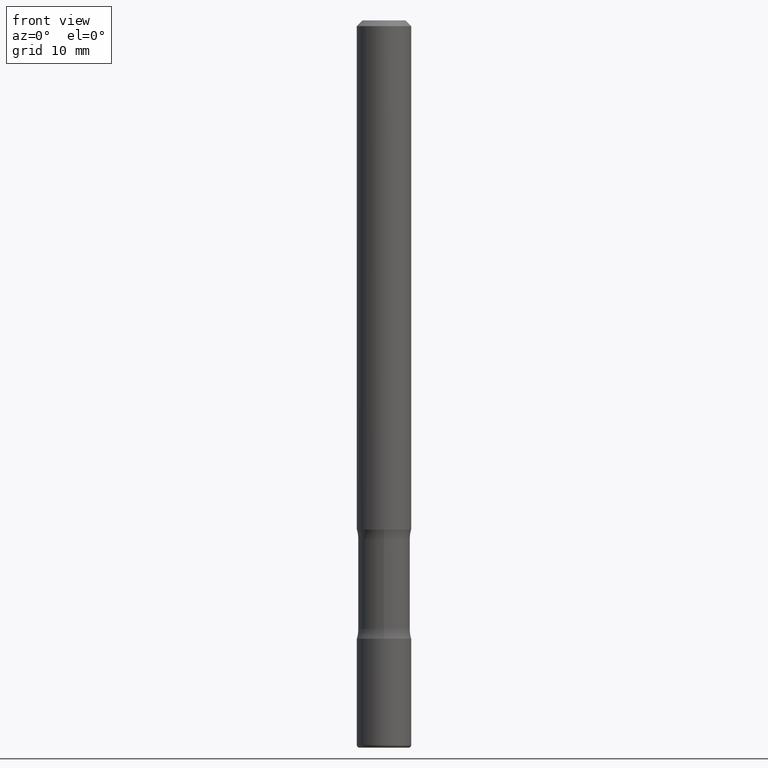
[diagram: clean part render]
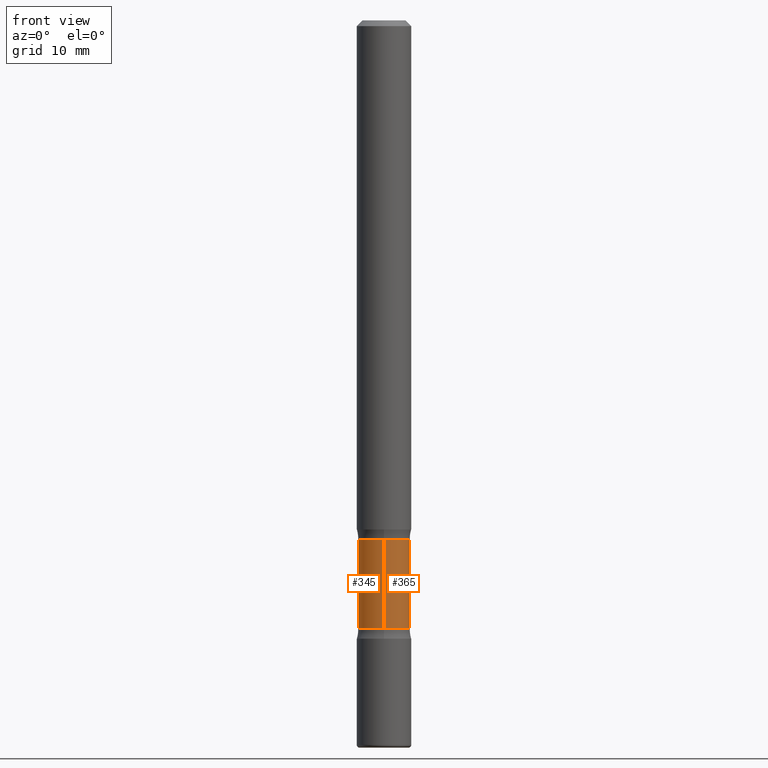
[diagram: same view with one multi-face feature highlighted, each face labeled with its STEP entity id]
A machine part, front view. The highlighted faces form ONE feature: a constant-radius fillet chain: 2 tangent blend faces with common blend radius 2.2622 mm. The faces share edges in the B-rep.
Their STEP definitions:
[1] entity #345 (Cylinder):
#5 = VERTEX_POINT ( 'NONE', #537 ) ;
#10 = DIRECTION ( 'NONE',  ( 6.982962677686265133E-15, 1.000000000000000000, -6.134676196298701332E-15 ) ) ;
#31 = CARTESIAN_POINT ( 'NONE',  ( -6.110131029264649859E-16, -0.08906250000000860700, -2.499999999999999556 ) ) ;
#39 = VERTEX_POINT ( 'NONE', #360 ) ;
#43 = DIRECTION ( 'NONE',  ( 2.553476385947133355E-29, -3.336808337214295667E-15, -1.000000000000000000 ) ) ;
#61 = VERTEX_POINT ( 'NONE', #296 ) ;
#62 = EDGE_CURVE ( 'NONE', #5, #39, #453, .T. ) ;
#94 = CIRCLE ( 'NONE', #358, 0.08906249999999994726 ) ;
#109 = EDGE_LOOP ( 'NONE', ( #509, #522, #311, #391 ) ) ;
#116 = LINE ( 'NONE', #407, #117 ) ;
#117 = VECTOR ( 'NONE', #329, 39.37007874015748143 ) ;
#126 = FACE_OUTER_BOUND ( 'NONE', #109, .T. ) ;
#136 = DIRECTION ( 'NONE',  ( 2.553476385947133355E-29, -3.336808337214295667E-15, -1.000000000000000000 ) ) ;
#191 = EDGE_CURVE ( 'NONE', #39, #386, #237, .T. ) ;
#206 = DIRECTION ( 'NONE',  ( 2.553476385947133355E-29, -3.336808337214295667E-15, -1.000000000000000000 ) ) ;
#211 = AXIS2_PLACEMENT_3D ( 'NONE', #523, #136, #10 ) ;
#217 = CARTESIAN_POINT ( 'NONE',  ( 4.325656488947447574E-29, -6.281246590105103764E-15, -1.783910210022204623 ) ) ;
#237 = CIRCLE ( 'NONE', #331, 0.08906249999999993339 ) ;
#254 = CYLINDRICAL_SURFACE ( 'NONE', #211, 0.08906249999999993339 ) ;
#260 = DIRECTION ( 'NONE',  ( 2.553476385947133355E-29, -3.336808337214295667E-15, -1.000000000000000000 ) ) ;
#283 = CARTESIAN_POINT ( 'NONE',  ( 6.219201134814836160E-16, 0.08906249999999261979, -2.091089789977795821 ) ) ;
#296 = CARTESIAN_POINT ( 'NONE',  ( 6.219201134814759246E-16, 0.08906249999999366063, -1.783910210022204845 ) ) ;
#309 = CARTESIAN_POINT ( 'NONE',  ( 5.110032292609207884E-29, -7.306245973522905960E-15, -2.091089789977795821 ) ) ;
#311 = ORIENTED_EDGE ( 'NONE', *, *, #539, .T. ) ;
#329 = DIRECTION ( 'NONE',  ( 2.553476385947133355E-29, -3.336808337214295667E-15, -1.000000000000000000 ) ) ;
#331 = AXIS2_PLACEMENT_3D ( 'NONE', #309, #43, #469 ) ;
#345 = ADVANCED_FACE ( 'NONE', ( #126 ), #254, .T. ) ;
#358 = AXIS2_PLACEMENT_3D ( 'NONE', #217, #260, #385 ) ;
#360 = CARTESIAN_POINT ( 'NONE',  ( -6.270923951087521301E-16, -0.08906250000000723310, -2.091089789977795377 ) ) ;
#385 = DIRECTION ( 'NONE',  ( 6.982962677686265133E-15, 1.000000000000000000, -3.067338098149349877E-15 ) ) ;
#386 = VERTEX_POINT ( 'NONE', #283 ) ;
#391 = ORIENTED_EDGE ( 'NONE', *, *, #191, .F. ) ;
#407 = CARTESIAN_POINT ( 'NONE',  ( 6.219201134814940684E-16, 0.08906249999999125977, -2.500000000000000444 ) ) ;
#453 = LINE ( 'NONE', #31, #524 ) ;
#469 = DIRECTION ( 'NONE',  ( 6.982962677686265133E-15, 1.000000000000000000, -3.067338098149350666E-15 ) ) ;
#500 = EDGE_CURVE ( 'NONE', #5, #61, #94, .T. ) ;
#509 = ORIENTED_EDGE ( 'NONE', *, *, #62, .F. ) ;
#522 = ORIENTED_EDGE ( 'NONE', *, *, #500, .T. ) ;
#523 = CARTESIAN_POINT ( 'NONE',  ( 6.154174857873591467E-29, -8.670700971497045879E-15, -2.500000000000000000 ) ) ;
#524 = VECTOR ( 'NONE', #206, 39.37007874015748143 ) ;
#537 = CARTESIAN_POINT ( 'NONE',  ( -6.270923951087611034E-16, -0.08906250000000623390, -1.783910210022204401 ) ) ;
#539 = EDGE_CURVE ( 'NONE', #61, #386, #116, .T. ) ;
[2] entity #365 (Cylinder):
#5 = VERTEX_POINT ( 'NONE', #537 ) ;
#9 = ORIENTED_EDGE ( 'NONE', *, *, #442, .T. ) ;
#17 = CARTESIAN_POINT ( 'NONE',  ( 4.325656488947447574E-29, -6.281246590105103764E-15, -1.783910210022204623 ) ) ;
#30 = AXIS2_PLACEMENT_3D ( 'NONE', #188, #556, #170 ) ;
#31 = CARTESIAN_POINT ( 'NONE',  ( -6.110131029264649859E-16, -0.08906250000000860700, -2.499999999999999556 ) ) ;
#39 = VERTEX_POINT ( 'NONE', #360 ) ;
#61 = VERTEX_POINT ( 'NONE', #296 ) ;
#62 = EDGE_CURVE ( 'NONE', #5, #39, #453, .T. ) ;
#103 = CIRCLE ( 'NONE', #394, 0.08906249999999993339 ) ;
#116 = LINE ( 'NONE', #407, #117 ) ;
#117 = VECTOR ( 'NONE', #329, 39.37007874015748143 ) ;
#151 = CARTESIAN_POINT ( 'NONE',  ( 5.110032292609207884E-29, -7.306245973522905960E-15, -2.091089789977795821 ) ) ;
#170 = DIRECTION ( 'NONE',  ( 6.982962677686265133E-15, 1.000000000000000000, -6.134676196298701332E-15 ) ) ;
#188 = CARTESIAN_POINT ( 'NONE',  ( 6.154174857873591467E-29, -8.670700971497045879E-15, -2.500000000000000000 ) ) ;
#198 = DIRECTION ( 'NONE',  ( 2.553476385947133355E-29, -3.336808337214295667E-15, -1.000000000000000000 ) ) ;
#206 = DIRECTION ( 'NONE',  ( 2.553476385947133355E-29, -3.336808337214295667E-15, -1.000000000000000000 ) ) ;
#241 = DIRECTION ( 'NONE',  ( 6.982962677686265133E-15, 1.000000000000000000, -3.067338098149350666E-15 ) ) ;
#280 = ORIENTED_EDGE ( 'NONE', *, *, #62, .T. ) ;
#283 = CARTESIAN_POINT ( 'NONE',  ( 6.219201134814836160E-16, 0.08906249999999261979, -2.091089789977795821 ) ) ;
#285 = ORIENTED_EDGE ( 'NONE', *, *, #515, .F. ) ;
#296 = CARTESIAN_POINT ( 'NONE',  ( 6.219201134814759246E-16, 0.08906249999999366063, -1.783910210022204845 ) ) ;
#329 = DIRECTION ( 'NONE',  ( 2.553476385947133355E-29, -3.336808337214295667E-15, -1.000000000000000000 ) ) ;
#360 = CARTESIAN_POINT ( 'NONE',  ( -6.270923951087521301E-16, -0.08906250000000723310, -2.091089789977795377 ) ) ;
#365 = ADVANCED_FACE ( 'NONE', ( #428 ), #472, .T. ) ;
#372 = AXIS2_PLACEMENT_3D ( 'NONE', #17, #198, #517 ) ;
#382 = CIRCLE ( 'NONE', #372, 0.08906249999999994726 ) ;
#386 = VERTEX_POINT ( 'NONE', #283 ) ;
#394 = AXIS2_PLACEMENT_3D ( 'NONE', #151, #449, #241 ) ;
#407 = CARTESIAN_POINT ( 'NONE',  ( 6.219201134814940684E-16, 0.08906249999999125977, -2.500000000000000444 ) ) ;
#428 = FACE_OUTER_BOUND ( 'NONE', #532, .T. ) ;
#442 = EDGE_CURVE ( 'NONE', #61, #5, #382, .T. ) ;
#449 = DIRECTION ( 'NONE',  ( 2.553476385947133355E-29, -3.336808337214295667E-15, -1.000000000000000000 ) ) ;
#453 = LINE ( 'NONE', #31, #524 ) ;
#472 = CYLINDRICAL_SURFACE ( 'NONE', #30, 0.08906249999999993339 ) ;
#485 = ORIENTED_EDGE ( 'NONE', *, *, #539, .F. ) ;
#515 = EDGE_CURVE ( 'NONE', #386, #39, #103, .T. ) ;
#517 = DIRECTION ( 'NONE',  ( 6.982962677686265133E-15, 1.000000000000000000, -3.067338098149349877E-15 ) ) ;
#524 = VECTOR ( 'NONE', #206, 39.37007874015748143 ) ;
#532 = EDGE_LOOP ( 'NONE', ( #9, #280, #285, #485 ) ) ;
#537 = CARTESIAN_POINT ( 'NONE',  ( -6.270923951087611034E-16, -0.08906250000000623390, -1.783910210022204401 ) ) ;
#539 = EDGE_CURVE ( 'NONE', #61, #386, #116, .T. ) ;
#556 = DIRECTION ( 'NONE',  ( 2.553476385947133355E-29, -3.336808337214295667E-15, -1.000000000000000000 ) ) ;